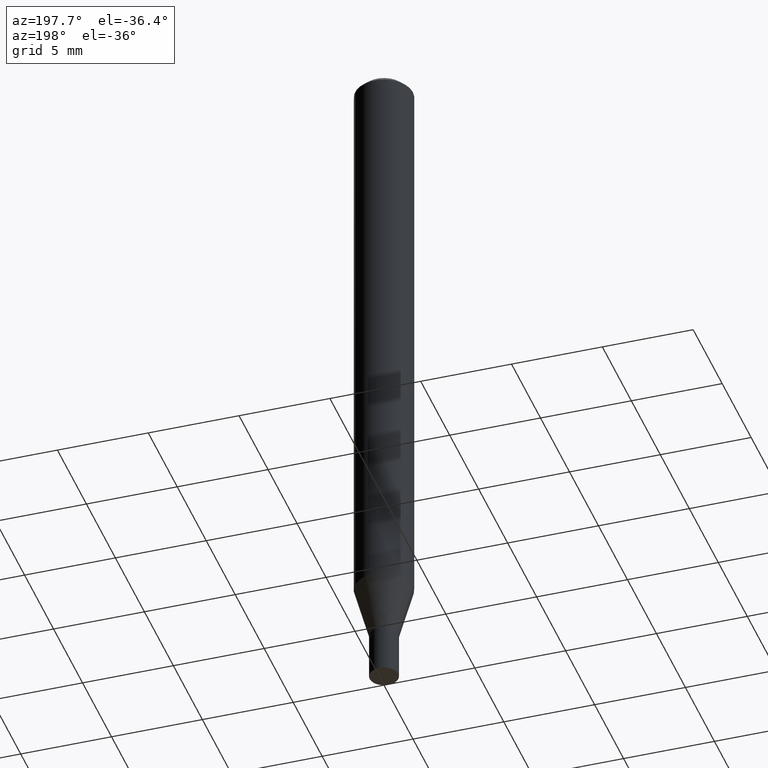
[diagram: clean part render]
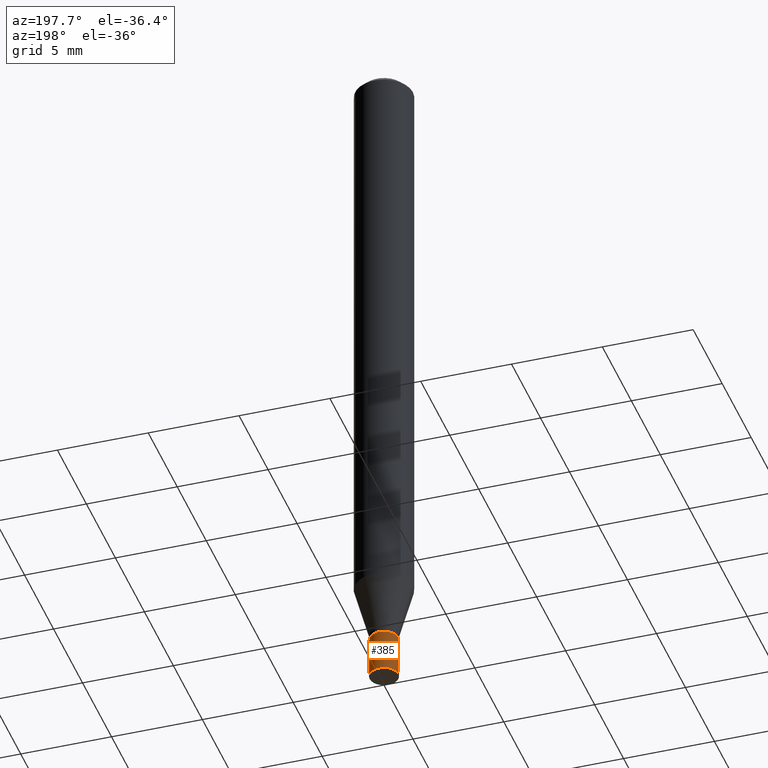
[diagram: same view with one face highlighted and labeled with its STEP entity id]
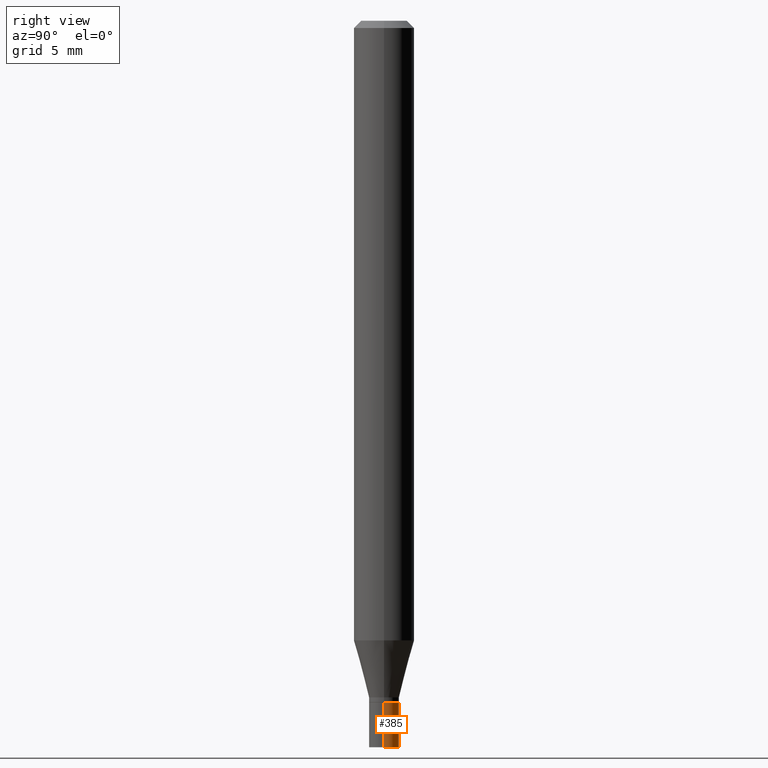
[diagram: same view with one face highlighted and labeled with its STEP entity id]
A machine part, auxiliary view. The second image highlights one B-rep face of the part: STEP entity #385.
A second angle (right view) of the same face is appended — the face is thin or edge-on in the first view.
In plain terms, the highlighted cylindrical surface (edge-blend (fillet) strip) has radius 0.7874 mm, axis along (-0, 0, 1).
Its self-contained STEP definition (entity closure, byte-faithful):
#9 = VERTEX_POINT ( 'NONE', #192 ) ;
#21 = VERTEX_POINT ( 'NONE', #229 ) ;
#29 = CARTESIAN_POINT ( 'NONE',  ( 0.03099999999999999978, -2.164718430082742572E-16, 1.511614800496739984E-30 ) ) ;
#33 = CARTESIAN_POINT ( 'NONE',  ( -0.03099999999999999978, -4.854599877922879992E-15, -1.500000000000000222 ) ) ;
#37 = LINE ( 'NONE', #102, #450 ) ;
#60 = CARTESIAN_POINT ( 'NONE',  ( 3.668203209277704895E-29, -5.237222008264718177E-15, -1.500000000000000222 ) ) ;
#66 = EDGE_LOOP ( 'NONE', ( #254, #139, #220, #437 ) ) ;
#74 = CARTESIAN_POINT ( 'NONE',  ( 0.000000000000000000, 0.000000000000000000, 0.000000000000000000 ) ) ;
#81 = AXIS2_PLACEMENT_3D ( 'NONE', #74, #359, #352 ) ;
#93 = CARTESIAN_POINT ( 'NONE',  ( -0.03099999999999999978, -4.854599877922879992E-15, -1.407000000000000028 ) ) ;
#101 = DIRECTION ( 'NONE',  ( 1.000000000000000000, -6.982962677686270655E-15, 0.000000000000000000 ) ) ;
#102 = CARTESIAN_POINT ( 'NONE',  ( -0.03099999999999999978, 2.202682480856310560E-16, -1.524869877979020612E-30 ) ) ;
#127 = EDGE_CURVE ( 'NONE', #21, #335, #457, .T. ) ;
#133 = LINE ( 'NONE', #29, #451 ) ;
#134 = CIRCLE ( 'NONE', #301, 0.03099999999999999978 ) ;
#139 = ORIENTED_EDGE ( 'NONE', *, *, #324, .T. ) ;
#171 = CARTESIAN_POINT ( 'NONE',  ( 3.440774610302487541E-29, -4.912514243752305891E-15, -1.407000000000000028 ) ) ;
#192 = CARTESIAN_POINT ( 'NONE',  ( 0.03099999999999999978, -5.128986086760580222E-15, -1.407000000000000028 ) ) ;
#219 = DIRECTION ( 'NONE',  ( -2.445468806185136597E-29, 3.491481338843145583E-15, 1.000000000000000000 ) ) ;
#220 = ORIENTED_EDGE ( 'NONE', *, *, #402, .F. ) ;
#226 = EDGE_CURVE ( 'NONE', #21, #9, #133, .T. ) ;
#229 = CARTESIAN_POINT ( 'NONE',  ( 0.03099999999999999978, -5.453693851272993297E-15, -1.500000000000000222 ) ) ;
#254 = ORIENTED_EDGE ( 'NONE', *, *, #127, .T. ) ;
#297 = VERTEX_POINT ( 'NONE', #93 ) ;
#301 = AXIS2_PLACEMENT_3D ( 'NONE', #171, #219, #362 ) ;
#324 = EDGE_CURVE ( 'NONE', #335, #297, #37, .T. ) ;
#330 = DIRECTION ( 'NONE',  ( -2.445468806185136877E-29, 3.491481338843145188E-15, 1.000000000000000000 ) ) ;
#333 = FACE_OUTER_BOUND ( 'NONE', #66, .T. ) ;
#335 = VERTEX_POINT ( 'NONE', #33 ) ;
#352 = DIRECTION ( 'NONE',  ( 1.000000000000000000, -6.982962677686266711E-15, 4.876176775795935232E-29 ) ) ;
#359 = DIRECTION ( 'NONE',  ( -2.445468806185136597E-29, 3.491481338843145583E-15, 1.000000000000000000 ) ) ;
#362 = DIRECTION ( 'NONE',  ( 1.000000000000000000, -6.982962677686270655E-15, 0.000000000000000000 ) ) ;
#367 = AXIS2_PLACEMENT_3D ( 'NONE', #60, #433, #101 ) ;
#385 = ADVANCED_FACE ( 'NONE', ( #333 ), #405, .T. ) ;
#402 = EDGE_CURVE ( 'NONE', #9, #297, #134, .T. ) ;
#405 = CYLINDRICAL_SURFACE ( 'NONE', #81, 0.03099999999999999978 ) ;
#433 = DIRECTION ( 'NONE',  ( -2.445468806185136597E-29, 3.491481338843145583E-15, 1.000000000000000000 ) ) ;
#437 = ORIENTED_EDGE ( 'NONE', *, *, #226, .F. ) ;
#450 = VECTOR ( 'NONE', #465, 39.37007874015748143 ) ;
#451 = VECTOR ( 'NONE', #330, 39.37007874015748143 ) ;
#457 = CIRCLE ( 'NONE', #367, 0.03099999999999999978 ) ;
#465 = DIRECTION ( 'NONE',  ( -2.445468806185136877E-29, 3.491481338843145188E-15, 1.000000000000000000 ) ) ;